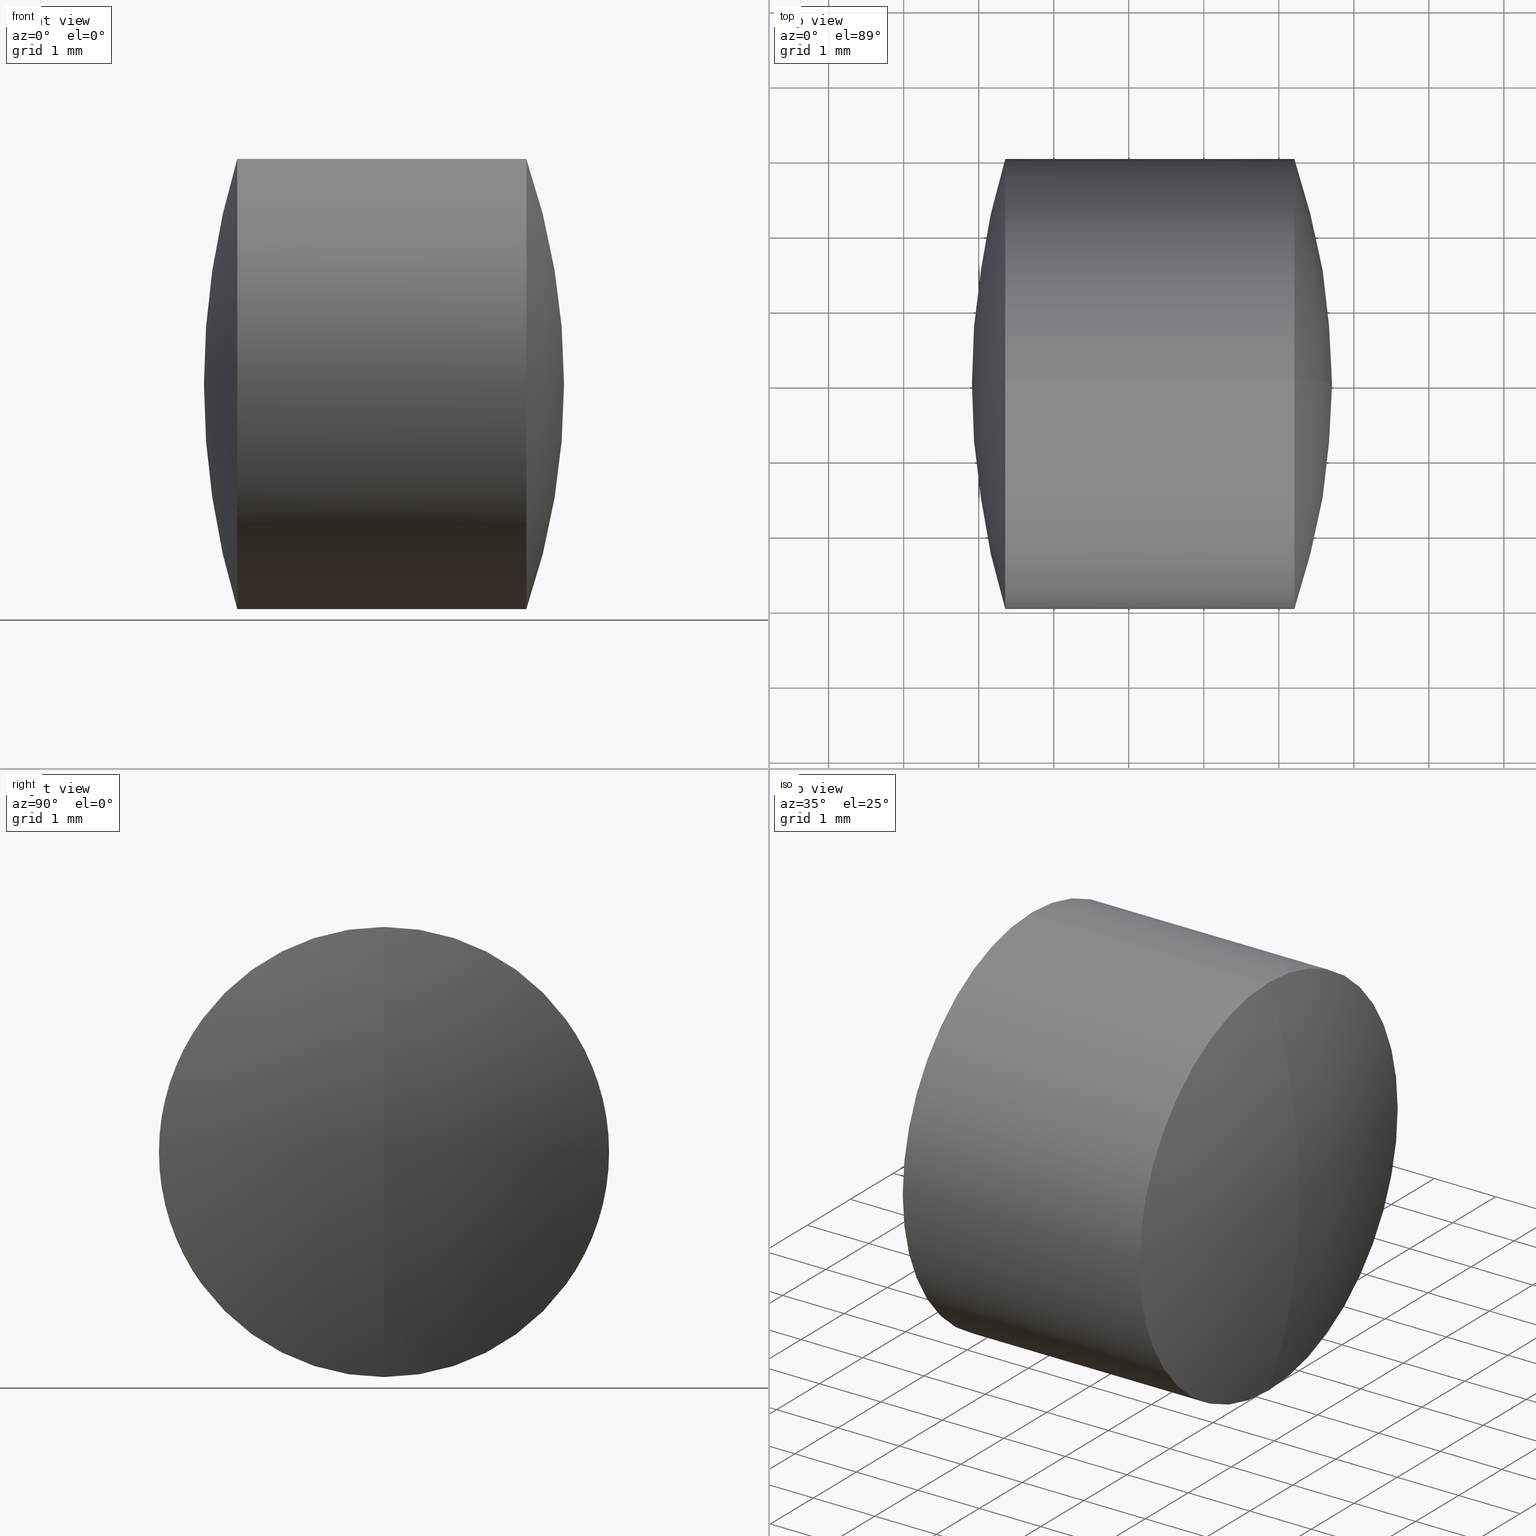
[diagram: canonical four-view strip — front | top / right | iso, engineering-drawing reading convention]
A machine part, canonical four-view strip (front | top / right | iso — engineering-drawing reading convention). The complete STEP part file that produces these views, byte-faithful:
ISO-10303-21;
HEADER;
FILE_DESCRIPTION (( 'STEP AP214' ),
    '1' );
FILE_NAME ('145147.STEP',
    '2019-06-06T02:48:01',
    ( 'user' ),
    ( '΢���й�' ),
    'SwSTEP 2.0',
    'SolidWorks 2016',
    '' );
FILE_SCHEMA (( 'AUTOMOTIVE_DESIGN' ));
ENDSEC;

DATA;
#1 = AXIS2_PLACEMENT_3D ( 'NONE', #107, #47, #204 ) ;
#2 = EDGE_LOOP ( 'NONE', ( #329, #177, #240 ) ) ;
#3 = DIRECTION ( 'NONE',  ( -0.0000000000000000000, -1.000000000000000000, -0.0000000000000000000 ) ) ;
#4 = AXIS2_PLACEMENT_3D ( 'NONE', #187, #258, #317 ) ;
#5 = ADVANCED_FACE ( 'NONE', ( #171 ), #339, .T. ) ;
#6 = DIRECTION ( 'NONE',  ( 0.0000000000000000000, 0.0000000000000000000, -1.000000000000000000 ) ) ;
#7 = EDGE_CURVE ( 'NONE', #222, #221, #336, .T. ) ;
#8 = AXIS2_PLACEMENT_3D ( 'NONE', #43, #70, #74 ) ;
#9 = VERTEX_POINT ( 'NONE', #88 ) ;
#10 = CARTESIAN_POINT ( 'NONE',  ( 1.831048013437507300, 0.0000000000000000000, 3.000000000000000000 ) ) ;
#11 = CARTESIAN_POINT ( 'NONE',  ( -0.2304077828385122900, 0.0000000000000000000, 1.490967787665402800E-016 ) ) ;
#12 = CIRCLE ( 'NONE', #4, 3.000000000000000000 ) ;
#13 = STYLED_ITEM ( 'NONE', ( #274 ), #146 ) ;
#14 = ORIENTED_EDGE ( 'NONE', *, *, #75, .F. ) ;
#15 = CARTESIAN_POINT ( 'NONE',  ( 3.409592217161487000, 0.0000000000000000000, 3.719824962113585100E-016 ) ) ;
#16 = MANIFOLD_SOLID_BREP ( '��ת2', #235 ) ;
#17 = DIRECTION ( 'NONE',  ( -1.000000000000000000, -0.0000000000000000000, -0.0000000000000000000 ) ) ;
#18 = FILL_AREA_STYLE_COLOUR ( '', #155 ) ;
#19 =( GEOMETRIC_REPRESENTATION_CONTEXT ( 3 ) GLOBAL_UNCERTAINTY_ASSIGNED_CONTEXT ( ( #150 ) ) GLOBAL_UNIT_ASSIGNED_CONTEXT ( ( #333, #151, #303 ) ) REPRESENTATION_CONTEXT ( 'NONE', 'WORKASPACE' ) );
#20 = CARTESIAN_POINT ( 'NONE',  ( -0.2304077828385122900, 0.0000000000000000000, 1.490967787665402800E-016 ) ) ;
#21 = SURFACE_SIDE_STYLE ('',( #153 ) ) ;
#22 = EDGE_LOOP ( 'NONE', ( #196, #72, #284 ) ) ;
#23 = CARTESIAN_POINT ( 'NONE',  ( 1.831048013437507300, 0.0000000000000000000, 0.0000000000000000000 ) ) ;
#24 = CIRCLE ( 'NONE', #32, 3.000000000000000000 ) ;
#25 =( GEOMETRIC_REPRESENTATION_CONTEXT ( 3 ) GLOBAL_UNCERTAINTY_ASSIGNED_CONTEXT ( ( #174 ) ) GLOBAL_UNIT_ASSIGNED_CONTEXT ( ( #38, #331, #242 ) ) REPRESENTATION_CONTEXT ( 'NONE', 'WORKASPACE' ) );
#26 =( LENGTH_UNIT ( ) NAMED_UNIT ( * ) SI_UNIT ( .MILLI., .METRE. ) );
#27 = EDGE_LOOP ( 'NONE', ( #159, #36, #113 ) ) ;
#28 = FILL_AREA_STYLE ('',( #18 ) ) ;
#29 = DIRECTION ( 'NONE',  ( -0.0000000000000000000, -1.000000000000000000, -0.0000000000000000000 ) ) ;
#30 = AXIS2_PLACEMENT_3D ( 'NONE', #228, #69, #310 ) ;
#31 = EDGE_LOOP ( 'NONE', ( #68, #306, #52, #14 ) ) ;
#32 = AXIS2_PLACEMENT_3D ( 'NONE', #23, #50, #120 ) ;
#33 = ADVANCED_FACE ( 'NONE', ( #62 ), #194, .F. ) ;
#34 = EDGE_CURVE ( 'NONE', #221, #222, #84, .T. ) ;
#35 = CARTESIAN_POINT ( 'NONE',  ( -0.5519199926577972300, 0.0000000000000000000, 0.0000000000000000000 ) ) ;
#36 = ORIENTED_EDGE ( 'NONE', *, *, #200, .T. ) ;
#37 = ORIENTED_EDGE ( 'NONE', *, *, #116, .F. ) ;
#38 =( LENGTH_UNIT ( ) NAMED_UNIT ( * ) SI_UNIT ( .MILLI., .METRE. ) );
#39 = AXIS2_PLACEMENT_3D ( 'NONE', #239, #260, #316 ) ;
#40 = FACE_OUTER_BOUND ( 'NONE', #241, .T. ) ;
#41 = DIRECTION ( 'NONE',  ( -1.000000000000000000, -0.0000000000000000000, -0.0000000000000000000 ) ) ;
#42 = EDGE_CURVE ( 'NONE', #105, #222, #81, .T. ) ;
#43 = CARTESIAN_POINT ( 'NONE',  ( -0.2304077828385122900, 0.0000000000000000000, 1.490967787665402800E-016 ) ) ;
#44 = DIRECTION ( 'NONE',  ( 0.0000000000000000000, 0.0000000000000000000, 1.000000000000000000 ) ) ;
#45 = VERTEX_POINT ( 'NONE', #281 ) ;
#46 = AXIS2_PLACEMENT_3D ( 'NONE', #101, #41, #180 ) ;
#47 = DIRECTION ( 'NONE',  ( 0.0000000000000000000, -1.000000000000000000, -1.224646799147353200E-016 ) ) ;
#48 = CARTESIAN_POINT ( 'NONE',  ( -4.490407782838510700, 0.0000000000000000000, 0.0000000000000000000 ) ) ;
#49 = AXIS2_PLACEMENT_3D ( 'NONE', #328, #292, #205 ) ;
#50 = DIRECTION ( 'NONE',  ( -1.000000000000000000, -0.0000000000000000000, -0.0000000000000000000 ) ) ;
#51 = AXIS2_PLACEMENT_3D ( 'NONE', #290, #341, #293 ) ;
#52 = ORIENTED_EDGE ( 'NONE', *, *, #212, .F. ) ;
#53 = EDGE_CURVE ( 'NONE', #314, #9, #106, .T. ) ;
#54 = CARTESIAN_POINT ( 'NONE',  ( -0.2304077828385122900, 0.0000000000000000000, 1.490967787665402800E-016 ) ) ;
#55 = CARTESIAN_POINT ( 'NONE',  ( 1.831048013437507300, 0.0000000000000000000, 0.0000000000000000000 ) ) ;
#56 =( NAMED_UNIT ( * ) SI_UNIT ( $, .STERADIAN. ) SOLID_ANGLE_UNIT ( ) );
#57 = VERTEX_POINT ( 'NONE', #170 ) ;
#58 = AXIS2_PLACEMENT_3D ( 'NONE', #11, #198, #172 ) ;
#59 = FILL_AREA_STYLE_COLOUR ( '', #140 ) ;
#60 = FACE_OUTER_BOUND ( 'NONE', #334, .T. ) ;
#61 = EDGE_LOOP ( 'NONE', ( #267, #169, #237 ) ) ;
#62 = FACE_OUTER_BOUND ( 'NONE', #2, .T. ) ;
#63 = PRODUCT_DEFINITION_CONTEXT ( 'detailed design', #165, 'design' ) ;
#64 = DIRECTION ( 'NONE',  ( 0.0000000000000000000, 0.0000000000000000000, 1.000000000000000000 ) ) ;
#65 = AXIS2_PLACEMENT_3D ( 'NONE', #259, #325, #234 ) ;
#66 = ADVANCED_FACE ( 'NONE', ( #99 ), #132, .T. ) ;
#67 =( GEOMETRIC_REPRESENTATION_CONTEXT ( 3 ) GLOBAL_UNCERTAINTY_ASSIGNED_CONTEXT ( ( #311 ) ) GLOBAL_UNIT_ASSIGNED_CONTEXT ( ( #134, #157, #104 ) ) REPRESENTATION_CONTEXT ( 'NONE', 'WORKASPACE' ) );
#68 = ORIENTED_EDGE ( 'NONE', *, *, #149, .T. ) ;
#69 = DIRECTION ( 'NONE',  ( -0.0000000000000000000, -1.000000000000000000, -0.0000000000000000000 ) ) ;
#70 = DIRECTION ( 'NONE',  ( 0.0000000000000000000, -1.000000000000000000, 0.0000000000000000000 ) ) ;
#71 = AXIS2_PLACEMENT_3D ( 'NONE', #175, #254, #330 ) ;
#72 = ORIENTED_EDGE ( 'NONE', *, *, #223, .T. ) ;
#73 = FILL_AREA_STYLE ('',( #179 ) ) ;
#74 = DIRECTION ( 'NONE',  ( 0.0000000000000000000, 0.0000000000000000000, -1.000000000000000000 ) ) ;
#75 = EDGE_CURVE ( 'NONE', #213, #314, #87, .T. ) ;
#76 = CARTESIAN_POINT ( 'NONE',  ( -4.490407782838510700, 0.0000000000000000000, 0.0000000000000000000 ) ) ;
#77 = DIRECTION ( 'NONE',  ( 0.0000000000000000000, 0.0000000000000000000, 1.000000000000000000 ) ) ;
#78 = APPLICATION_PROTOCOL_DEFINITION ( 'draft international standard', 'automotive_design', 1998, #210 ) ;
#79 = PRESENTATION_STYLE_ASSIGNMENT (( #315 ) ) ;
#80 = ORIENTED_EDGE ( 'NONE', *, *, #270, .F. ) ;
#81 = LINE ( 'NONE', #124, #95 ) ;
#82 = AXIS2_PLACEMENT_3D ( 'NONE', #48, #185, #143 ) ;
#83 = ORIENTED_EDGE ( 'NONE', *, *, #75, .T. ) ;
#84 = CIRCLE ( 'NONE', #346, 3.000000000000000000 ) ;
#85 = AXIS2_PLACEMENT_3D ( 'NONE', #294, #135, #118 ) ;
#86 = CIRCLE ( 'NONE', #324, 3.000000000000000000 ) ;
#87 = LINE ( 'NONE', #322, #137 ) ;
#88 = CARTESIAN_POINT ( 'NONE',  ( -0.09040778283851344500, 0.0000000000000000000, -6.167229071329056100E-016 ) ) ;
#89 = CARTESIAN_POINT ( 'NONE',  ( -0.8160621761658039000, 3.673940397442059900E-016, -3.000000000000000000 ) ) ;
#90 = EDGE_CURVE ( 'NONE', #93, #45, #138, .T. ) ;
#91 = DIRECTION ( 'NONE',  ( -1.000000000000000000, -0.0000000000000000000, -0.0000000000000000000 ) ) ;
#92 = ADVANCED_FACE ( 'NONE', ( #163 ), #167, .T. ) ;
#93 = VERTEX_POINT ( 'NONE', #313 ) ;
#94 = SURFACE_SIDE_STYLE ('',( #327 ) ) ;
#95 = VECTOR ( 'NONE', #278, 1000.000000000000000 ) ;
#96 = CIRCLE ( 'NONE', #51, 10.35000000000000100 ) ;
#97 = DIRECTION ( 'NONE',  ( 0.0000000000000000000, 0.0000000000000000000, -1.000000000000000000 ) ) ;
#98 = PRODUCT ( '145147', '145147', '', ( #208 ) ) ;
#99 = FACE_OUTER_BOUND ( 'NONE', #61, .T. ) ;
#100 = DIRECTION ( 'NONE',  ( -1.000000000000000000, -0.0000000000000000000, -0.0000000000000000000 ) ) ;
#101 = CARTESIAN_POINT ( 'NONE',  ( -0.8160621761658039000, 0.0000000000000000000, 0.0000000000000000000 ) ) ;
#102 = CARTESIAN_POINT ( 'NONE',  ( 0.3539120285020531100, -3.673940397442060400E-016, 3.000000000000000000 ) ) ;
#103 = CARTESIAN_POINT ( 'NONE',  ( -4.490407782838510700, 0.0000000000000000000, 0.0000000000000000000 ) ) ;
#104 =( NAMED_UNIT ( * ) SI_UNIT ( $, .STERADIAN. ) SOLID_ANGLE_UNIT ( ) );
#105 = VERTEX_POINT ( 'NONE', #225 ) ;
#106 = CIRCLE ( 'NONE', #39, 10.35000000000000100 ) ;
#107 = CARTESIAN_POINT ( 'NONE',  ( -0.2304077828385122900, 0.0000000000000000000, 1.490967787665402800E-016 ) ) ;
#108 = PRODUCT_RELATED_PRODUCT_CATEGORY ( 'part', '', ( #98 ) ) ;
#109 = DIRECTION ( 'NONE',  ( -1.000000000000000000, -0.0000000000000000000, -0.0000000000000000000 ) ) ;
#110 = DIRECTION ( 'NONE',  ( 1.000000000000000000, 0.0000000000000000000, 0.0000000000000000000 ) ) ;
#111 = EDGE_CURVE ( 'NONE', #119, #213, #296, .T. ) ;
#112 =( NAMED_UNIT ( * ) PLANE_ANGLE_UNIT ( ) SI_UNIT ( $, .RADIAN. ) );
#113 = ORIENTED_EDGE ( 'NONE', *, *, #321, .F. ) ;
#114 = PRODUCT_DEFINITION_FORMATION_WITH_SPECIFIED_SOURCE ( '�κ�', '', #98, .NOT_KNOWN. ) ;
#115 = DIRECTION ( 'NONE',  ( -1.000000000000000000, -0.0000000000000000000, -0.0000000000000000000 ) ) ;
#116 = EDGE_CURVE ( 'NONE', #326, #216, #117, .T. ) ;
#117 = LINE ( 'NONE', #89, #147 ) ;
#118 = DIRECTION ( 'NONE',  ( 0.0000000000000000000, 0.0000000000000000000, -1.000000000000000000 ) ) ;
#119 = VERTEX_POINT ( 'NONE', #15 ) ;
#120 = DIRECTION ( 'NONE',  ( 0.0000000000000000000, 0.0000000000000000000, 1.000000000000000000 ) ) ;
#121 = PRODUCT_DEFINITION ( 'δ֪', '', #114, #63 ) ;
#122 = EDGE_LOOP ( 'NONE', ( #291, #252, #227 ) ) ;
#123 = ADVANCED_FACE ( 'NONE', ( #300 ), #299, .T. ) ;
#124 = CARTESIAN_POINT ( 'NONE',  ( -0.5519199926577972300, 0.0000000000000000000, 3.000000000000000000 ) ) ;
#125 = AXIS2_PLACEMENT_3D ( 'NONE', #262, #139, #110 ) ;
#126 = CLOSED_SHELL ( 'NONE', ( #276, #123, #332, #219, #305, #301 ) ) ;
#127 = DIRECTION ( 'NONE',  ( -1.000000000000000000, -0.0000000000000000000, -0.0000000000000000000 ) ) ;
#128 = DIRECTION ( 'NONE',  ( 0.0000000000000000000, 0.0000000000000000000, -1.000000000000000000 ) ) ;
#129 = ORIENTED_EDGE ( 'NONE', *, *, #133, .T. ) ;
#130 = PRODUCT_DEFINITION_SHAPE ( 'NONE', 'NONE',  #121 ) ;
#131 = CARTESIAN_POINT ( 'NONE',  ( 10.25959221716148800, 0.0000000000000000000, 1.703181142584977900E-017 ) ) ;
#132 = SPHERICAL_SURFACE ( 'NONE', #268, 9.199999999999999300 ) ;
#133 = EDGE_CURVE ( 'NONE', #105, #45, #269, .T. ) ;
#134 =( LENGTH_UNIT ( ) NAMED_UNIT ( * ) SI_UNIT ( .MILLI., .METRE. ) );
#135 = DIRECTION ( 'NONE',  ( -0.0000000000000000000, -1.000000000000000000, -0.0000000000000000000 ) ) ;
#136 = CARTESIAN_POINT ( 'NONE',  ( 1.831048013437506900, -3.673940397442060400E-016, 3.000000000000000000 ) ) ;
#137 = VECTOR ( 'NONE', #127, 1000.000000000000000 ) ;
#138 = CIRCLE ( 'NONE', #344, 9.199999999999999300 ) ;
#139 = DIRECTION ( 'NONE',  ( 0.0000000000000000000, 0.0000000000000000000, 1.000000000000000000 ) ) ;
#140 = COLOUR_RGB ( '',1.000000000000000000, 1.000000000000000000, 1.000000000000000000 ) ;
#141 = CARTESIAN_POINT ( 'NONE',  ( 0.3539120285020534400, 0.0000000000000000000, 0.0000000000000000000 ) ) ;
#142 = DIRECTION ( 'NONE',  ( 0.0000000000000000000, 0.0000000000000000000, 1.000000000000000000 ) ) ;
#143 = DIRECTION ( 'NONE',  ( 0.0000000000000000000, 1.224646799147353200E-016, -1.000000000000000000 ) ) ;
#144 = PRESENTATION_LAYER_ASSIGNMENT (  '', '', ( #318 ) ) ;
#145 = EDGE_LOOP ( 'NONE', ( #37, #193, #83, #295 ) ) ;
#146 = MANIFOLD_SOLID_BREP ( '��ת1', #126 ) ;
#147 = VECTOR ( 'NONE', #100, 1000.000000000000000 ) ;
#148 = ADVANCED_FACE ( 'NONE', ( #160 ), #152, .F. ) ;
#149 = EDGE_CURVE ( 'NONE', #213, #326, #24, .T. ) ;
#150 = UNCERTAINTY_MEASURE_WITH_UNIT (LENGTH_MEASURE( 1.000000000000000100E-005 ), #333, 'distance_accuracy_value', 'NONE');
#151 =( NAMED_UNIT ( * ) PLANE_ANGLE_UNIT ( ) SI_UNIT ( $, .RADIAN. ) );
#152 = SPHERICAL_SURFACE ( 'NONE', #58, 3.640000000000000100 ) ;
#153 = SURFACE_STYLE_FILL_AREA ( #73 ) ;
#154 = ORIENTED_EDGE ( 'NONE', *, *, #212, .T. ) ;
#155 = COLOUR_RGB ( '',1.000000000000000000, 1.000000000000000000, 1.000000000000000000 ) ;
#156 = DIRECTION ( 'NONE',  ( -1.000000000000000000, -0.0000000000000000000, -0.0000000000000000000 ) ) ;
#157 =( NAMED_UNIT ( * ) PLANE_ANGLE_UNIT ( ) SI_UNIT ( $, .RADIAN. ) );
#158 = FACE_OUTER_BOUND ( 'NONE', #22, .T. ) ;
#159 = ORIENTED_EDGE ( 'NONE', *, *, #90, .F. ) ;
#160 = FACE_OUTER_BOUND ( 'NONE', #271, .T. ) ;
#161 = AXIS2_PLACEMENT_3D ( 'NONE', #54, #340, #289 ) ;
#162 = DIRECTION ( 'NONE',  ( 0.0000000000000000000, 0.0000000000000000000, 1.000000000000000000 ) ) ;
#163 = FACE_OUTER_BOUND ( 'NONE', #27, .T. ) ;
#164 = AXIS2_PLACEMENT_3D ( 'NONE', #203, #156, #181 ) ;
#165 = APPLICATION_CONTEXT ( 'automotive_design' ) ;
#166 = ORIENTED_EDGE ( 'NONE', *, *, #321, .T. ) ;
#167 = SPHERICAL_SURFACE ( 'NONE', #30, 9.199999999999999300 ) ;
#168 = SURFACE_SIDE_STYLE ('',( #186 ) ) ;
#169 = ORIENTED_EDGE ( 'NONE', *, *, #90, .T. ) ;
#170 = CARTESIAN_POINT ( 'NONE',  ( 3.409592217161487900, 0.0000000000000000000, -7.378893867827801700E-017 ) ) ;
#171 = FACE_OUTER_BOUND ( 'NONE', #182, .T. ) ;
#172 = DIRECTION ( 'NONE',  ( 0.0000000000000000000, 0.0000000000000000000, -1.000000000000000000 ) ) ;
#173 = SPHERICAL_SURFACE ( 'NONE', #85, 10.35000000000000100 ) ;
#174 = UNCERTAINTY_MEASURE_WITH_UNIT (LENGTH_MEASURE( 1.000000000000000100E-005 ), #38, 'distance_accuracy_value', 'NONE');
#175 = CARTESIAN_POINT ( 'NONE',  ( 4.206718179225045900, 0.0000000000000000000, 0.0000000000000000000 ) ) ;
#176 = SPHERICAL_SURFACE ( 'NONE', #312, 10.35000000000000100 ) ;
#177 = ORIENTED_EDGE ( 'NONE', *, *, #270, .T. ) ;
#178 = MECHANICAL_DESIGN_GEOMETRIC_PRESENTATION_REPRESENTATION (  '', ( #13 ), #25 ) ;
#179 = FILL_AREA_STYLE_COLOUR ( '', #286 ) ;
#180 = DIRECTION ( 'NONE',  ( 0.0000000000000000000, 0.0000000000000000000, 1.000000000000000000 ) ) ;
#181 = DIRECTION ( 'NONE',  ( 0.0000000000000000000, 0.0000000000000000000, 1.000000000000000000 ) ) ;
#182 = EDGE_LOOP ( 'NONE', ( #233, #166, #206, #320 ) ) ;
#183 = AXIS2_PLACEMENT_3D ( 'NONE', #218, #91, #64 ) ;
#184 = DIRECTION ( 'NONE',  ( 0.0000000000000000000, 1.000000000000000000, 0.0000000000000000000 ) ) ;
#185 = DIRECTION ( 'NONE',  ( 0.0000000000000000000, -1.000000000000000000, -1.224646799147353200E-016 ) ) ;
#186 = SURFACE_STYLE_FILL_AREA ( #217 ) ;
#187 = CARTESIAN_POINT ( 'NONE',  ( 0.3539120285020534400, 0.0000000000000000000, 0.0000000000000000000 ) ) ;
#188 = CARTESIAN_POINT ( 'NONE',  ( 0.3539120285020531100, 0.0000000000000000000, -3.000000000000000000 ) ) ;
#189 = ORIENTED_EDGE ( 'NONE', *, *, #251, .T. ) ;
#190 = EDGE_CURVE ( 'NONE', #216, #9, #96, .T. ) ;
#191 = AXIS2_PLACEMENT_3D ( 'NONE', #201, #17, #44 ) ;
#192 = FACE_OUTER_BOUND ( 'NONE', #122, .T. ) ;
#193 = ORIENTED_EDGE ( 'NONE', *, *, #209, .T. ) ;
#194 = SPHERICAL_SURFACE ( 'NONE', #275, 3.640000000000000100 ) ;
#195 = EDGE_CURVE ( 'NONE', #216, #314, #308, .T. ) ;
#196 = ORIENTED_EDGE ( 'NONE', *, *, #111, .F. ) ;
#197 = ORIENTED_EDGE ( 'NONE', *, *, #53, .T. ) ;
#198 = DIRECTION ( 'NONE',  ( -0.0000000000000000000, -1.000000000000000000, -0.0000000000000000000 ) ) ;
#199 = DIRECTION ( 'NONE',  ( 0.0000000000000000000, 0.0000000000000000000, 1.000000000000000000 ) ) ;
#200 = EDGE_CURVE ( 'NONE', #93, #105, #236, .T. ) ;
#201 = CARTESIAN_POINT ( 'NONE',  ( 4.206718179225045900, 0.0000000000000000000, 0.0000000000000000000 ) ) ;
#202 = ORIENTED_EDGE ( 'NONE', *, *, #195, .T. ) ;
#203 = CARTESIAN_POINT ( 'NONE',  ( -0.8160621761658039000, 0.0000000000000000000, 0.0000000000000000000 ) ) ;
#204 = DIRECTION ( 'NONE',  ( 0.0000000000000000000, 1.224646799147353200E-016, -1.000000000000000000 ) ) ;
#205 = DIRECTION ( 'NONE',  ( 0.0000000000000000000, -1.224646799147353000E-016, 1.000000000000000000 ) ) ;
#206 = ORIENTED_EDGE ( 'NONE', *, *, #42, .T. ) ;
#207 = EDGE_LOOP ( 'NONE', ( #129, #189, #280, #245 ) ) ;
#208 = PRODUCT_CONTEXT ( 'NONE', #210, 'mechanical' ) ;
#209 = EDGE_CURVE ( 'NONE', #326, #213, #86, .T. ) ;
#210 = APPLICATION_CONTEXT ( 'automotive_design' ) ;
#211 = ORIENTED_EDGE ( 'NONE', *, *, #190, .T. ) ;
#212 = EDGE_CURVE ( 'NONE', #314, #216, #12, .T. ) ;
#213 = VERTEX_POINT ( 'NONE', #10 ) ;
#214 = FACE_OUTER_BOUND ( 'NONE', #207, .T. ) ;
#215 = CIRCLE ( 'NONE', #191, 3.000000000000000000 ) ;
#216 = VERTEX_POINT ( 'NONE', #188 ) ;
#217 = FILL_AREA_STYLE ('',( #59 ) ) ;
#218 = CARTESIAN_POINT ( 'NONE',  ( 1.831048013437506900, 0.0000000000000000000, 0.0000000000000000000 ) ) ;
#219 = ADVANCED_FACE ( 'NONE', ( #60 ), #173, .T. ) ;
#220 = SURFACE_STYLE_USAGE ( .BOTH. , #94 ) ;
#221 = VERTEX_POINT ( 'NONE', #288 ) ;
#222 = VERTEX_POINT ( 'NONE', #136 ) ;
#223 = EDGE_CURVE ( 'NONE', #119, #326, #297, .T. ) ;
#224 = CIRCLE ( 'NONE', #161, 3.640000000000000100 ) ;
#225 = CARTESIAN_POINT ( 'NONE',  ( 4.206718179225045900, -3.673940397442063300E-016, 3.000000000000003600 ) ) ;
#226 = ORIENTED_EDGE ( 'NONE', *, *, #190, .F. ) ;
#227 = ORIENTED_EDGE ( 'NONE', *, *, #209, .F. ) ;
#228 = CARTESIAN_POINT ( 'NONE',  ( -4.490407782838510700, 0.0000000000000000000, 0.0000000000000000000 ) ) ;
#229 = DIRECTION ( 'NONE',  ( 0.0000000000000000000, 0.0000000000000000000, 1.000000000000000000 ) ) ;
#230 = UNCERTAINTY_MEASURE_WITH_UNIT (LENGTH_MEASURE( 1.000000000000000100E-005 ), #26, 'distance_accuracy_value', 'NONE');
#231 = CARTESIAN_POINT ( 'NONE',  ( -0.5519199926577972300, 3.673940397442059900E-016, -3.000000000000000000 ) ) ;
#232 = CYLINDRICAL_SURFACE ( 'NONE', #253, 3.000000000000000000 ) ;
#233 = ORIENTED_EDGE ( 'NONE', *, *, #251, .F. ) ;
#234 = DIRECTION ( 'NONE',  ( 0.0000000000000000000, 0.0000000000000000000, 1.000000000000000000 ) ) ;
#235 = CLOSED_SHELL ( 'NONE', ( #250, #92, #33, #148, #66, #5 ) ) ;
#236 = CIRCLE ( 'NONE', #82, 9.199999999999999300 ) ;
#237 = ORIENTED_EDGE ( 'NONE', *, *, #133, .F. ) ;
#238 = CARTESIAN_POINT ( 'NONE',  ( -0.5519199926577972300, 0.0000000000000000000, 0.0000000000000000000 ) ) ;
#239 = CARTESIAN_POINT ( 'NONE',  ( 10.25959221716148800, 0.0000000000000000000, 1.703181142584977900E-017 ) ) ;
#240 = ORIENTED_EDGE ( 'NONE', *, *, #7, .T. ) ;
#241 = EDGE_LOOP ( 'NONE', ( #202, #197, #226 ) ) ;
#242 =( NAMED_UNIT ( * ) SI_UNIT ( $, .STERADIAN. ) SOLID_ANGLE_UNIT ( ) );
#243 = MECHANICAL_DESIGN_GEOMETRIC_PRESENTATION_REPRESENTATION (  '', ( #318 ), #67 ) ;
#244 = SHAPE_DEFINITION_REPRESENTATION ( #130, #265 ) ;
#245 = ORIENTED_EDGE ( 'NONE', *, *, #42, .F. ) ;
#246 = CARTESIAN_POINT ( 'NONE',  ( -0.2304077828385122900, 0.0000000000000000000, 1.490967787665402800E-016 ) ) ;
#247 = DIRECTION ( 'NONE',  ( 0.0000000000000000000, 1.000000000000000000, -0.0000000000000000000 ) ) ;
#248 = AXIS2_PLACEMENT_3D ( 'NONE', #141, #323, #343 ) ;
#249 = FACE_OUTER_BOUND ( 'NONE', #145, .T. ) ;
#250 = ADVANCED_FACE ( 'NONE', ( #214 ), #232, .T. ) ;
#251 = EDGE_CURVE ( 'NONE', #45, #221, #298, .T. ) ;
#252 = ORIENTED_EDGE ( 'NONE', *, *, #111, .T. ) ;
#253 = AXIS2_PLACEMENT_3D ( 'NONE', #238, #115, #261 ) ;
#254 = DIRECTION ( 'NONE',  ( -1.000000000000000000, -0.0000000000000000000, -0.0000000000000000000 ) ) ;
#255 = EDGE_CURVE ( 'NONE', #57, #221, #224, .T. ) ;
#256 = DIRECTION ( 'NONE',  ( -0.0000000000000000000, -1.000000000000000000, -0.0000000000000000000 ) ) ;
#257 = ORIENTED_EDGE ( 'NONE', *, *, #34, .T. ) ;
#258 = DIRECTION ( 'NONE',  ( -1.000000000000000000, -0.0000000000000000000, -0.0000000000000000000 ) ) ;
#259 = CARTESIAN_POINT ( 'NONE',  ( -0.2304077828385122900, 0.0000000000000000000, 1.490967787665402800E-016 ) ) ;
#260 = DIRECTION ( 'NONE',  ( 0.0000000000000000000, -1.000000000000000000, -1.224646799147353200E-016 ) ) ;
#261 = DIRECTION ( 'NONE',  ( 0.0000000000000000000, 0.0000000000000000000, 1.000000000000000000 ) ) ;
#262 = CARTESIAN_POINT ( 'NONE',  ( 0.0000000000000000000, 0.0000000000000000000, 0.0000000000000000000 ) ) ;
#263 = STYLED_ITEM ( 'NONE', ( #345 ), #16 ) ;
#264 = DIRECTION ( 'NONE',  ( -1.000000000000000000, -0.0000000000000000000, -0.0000000000000000000 ) ) ;
#265 = ADVANCED_BREP_SHAPE_REPRESENTATION ( '145147', ( #146, #16, #125 ), #337 ) ;
#266 = SPHERICAL_SURFACE ( 'NONE', #335, 3.639999999999999700 ) ;
#267 = ORIENTED_EDGE ( 'NONE', *, *, #200, .F. ) ;
#268 = AXIS2_PLACEMENT_3D ( 'NONE', #76, #29, #97 ) ;
#269 = CIRCLE ( 'NONE', #71, 3.000000000000000000 ) ;
#270 = EDGE_CURVE ( 'NONE', #57, #222, #283, .T. ) ;
#271 = EDGE_LOOP ( 'NONE', ( #80, #279, #257 ) ) ;
#272 = DIRECTION ( 'NONE',  ( -1.000000000000000000, -0.0000000000000000000, -0.0000000000000000000 ) ) ;
#273 = SPHERICAL_SURFACE ( 'NONE', #65, 3.639999999999999700 ) ;
#274 = PRESENTATION_STYLE_ASSIGNMENT (( #220 ) ) ;
#275 = AXIS2_PLACEMENT_3D ( 'NONE', #246, #3, #6 ) ;
#276 = ADVANCED_FACE ( 'NONE', ( #158 ), #273, .T. ) ;
#277 = SURFACE_STYLE_USAGE ( .BOTH. , #168 ) ;
#278 = DIRECTION ( 'NONE',  ( -1.000000000000000000, -0.0000000000000000000, -0.0000000000000000000 ) ) ;
#279 = ORIENTED_EDGE ( 'NONE', *, *, #255, .T. ) ;
#280 = ORIENTED_EDGE ( 'NONE', *, *, #7, .F. ) ;
#281 = CARTESIAN_POINT ( 'NONE',  ( 4.206718179225045900, 0.0000000000000000000, -3.000000000000003600 ) ) ;
#282 = PRESENTATION_LAYER_ASSIGNMENT (  '', '', ( #263 ) ) ;
#283 = CIRCLE ( 'NONE', #1, 3.640000000000000100 ) ;
#284 = ORIENTED_EDGE ( 'NONE', *, *, #149, .F. ) ;
#285 = CARTESIAN_POINT ( 'NONE',  ( 1.831048013437507300, 3.673940397442059900E-016, -3.000000000000000000 ) ) ;
#286 = COLOUR_RGB ( '',1.000000000000000000, 1.000000000000000000, 1.000000000000000000 ) ;
#287 = ORIENTED_EDGE ( 'NONE', *, *, #53, .F. ) ;
#288 = CARTESIAN_POINT ( 'NONE',  ( 1.831048013437506900, 0.0000000000000000000, -3.000000000000000000 ) ) ;
#289 = DIRECTION ( 'NONE',  ( 0.0000000000000000000, 0.0000000000000000000, 1.000000000000000000 ) ) ;
#290 = CARTESIAN_POINT ( 'NONE',  ( 10.25959221716148800, 0.0000000000000000000, 1.703181142584977900E-017 ) ) ;
#291 = ORIENTED_EDGE ( 'NONE', *, *, #223, .F. ) ;
#292 = DIRECTION ( 'NONE',  ( -0.0000000000000000000, 1.000000000000000000, 1.224646799147353200E-016 ) ) ;
#293 = DIRECTION ( 'NONE',  ( 0.0000000000000000000, 0.0000000000000000000, 1.000000000000000000 ) ) ;
#294 = CARTESIAN_POINT ( 'NONE',  ( 10.25959221716148800, 0.0000000000000000000, 1.703181142584977900E-017 ) ) ;
#295 = ORIENTED_EDGE ( 'NONE', *, *, #195, .F. ) ;
#296 = CIRCLE ( 'NONE', #8, 3.639999999999999700 ) ;
#297 = CIRCLE ( 'NONE', #49, 3.639999999999999700 ) ;
#298 = LINE ( 'NONE', #231, #319 ) ;
#299 = CYLINDRICAL_SURFACE ( 'NONE', #46, 3.000000000000000000 ) ;
#300 = FACE_OUTER_BOUND ( 'NONE', #31, .T. ) ;
#301 = ADVANCED_FACE ( 'NONE', ( #192 ), #266, .T. ) ;
#302 = PRESENTATION_LAYER_ASSIGNMENT (  '', '', ( #13 ) ) ;
#303 =( NAMED_UNIT ( * ) SI_UNIT ( $, .STERADIAN. ) SOLID_ANGLE_UNIT ( ) );
#304 = CYLINDRICAL_SURFACE ( 'NONE', #164, 3.000000000000000000 ) ;
#305 = ADVANCED_FACE ( 'NONE', ( #249 ), #304, .T. ) ;
#306 = ORIENTED_EDGE ( 'NONE', *, *, #116, .T. ) ;
#307 = CARTESIAN_POINT ( 'NONE',  ( 1.831048013437506900, 0.0000000000000000000, 0.0000000000000000000 ) ) ;
#308 = CIRCLE ( 'NONE', #248, 3.000000000000000000 ) ;
#309 = MECHANICAL_DESIGN_GEOMETRIC_PRESENTATION_REPRESENTATION (  '', ( #263 ), #19 ) ;
#310 = DIRECTION ( 'NONE',  ( 0.0000000000000000000, 0.0000000000000000000, -1.000000000000000000 ) ) ;
#311 = UNCERTAINTY_MEASURE_WITH_UNIT (LENGTH_MEASURE( 1.000000000000000100E-005 ), #134, 'distance_accuracy_value', 'NONE');
#312 = AXIS2_PLACEMENT_3D ( 'NONE', #131, #256, #128 ) ;
#313 = CARTESIAN_POINT ( 'NONE',  ( 4.709592217161488600, 0.0000000000000000000, -5.633375276077824100E-016 ) ) ;
#314 = VERTEX_POINT ( 'NONE', #102 ) ;
#315 = SURFACE_STYLE_USAGE ( .BOTH. , #21 ) ;
#316 = DIRECTION ( 'NONE',  ( 0.0000000000000000000, 1.224646799147353200E-016, -1.000000000000000000 ) ) ;
#317 = DIRECTION ( 'NONE',  ( 0.0000000000000000000, 0.0000000000000000000, 1.000000000000000000 ) ) ;
#318 = STYLED_ITEM ( 'NONE', ( #79 ), #265 ) ;
#319 = VECTOR ( 'NONE', #342, 1000.000000000000000 ) ;
#320 = ORIENTED_EDGE ( 'NONE', *, *, #34, .F. ) ;
#321 = EDGE_CURVE ( 'NONE', #45, #105, #215, .T. ) ;
#322 = CARTESIAN_POINT ( 'NONE',  ( -0.8160621761658039000, 0.0000000000000000000, 3.000000000000000000 ) ) ;
#323 = DIRECTION ( 'NONE',  ( -1.000000000000000000, -0.0000000000000000000, -0.0000000000000000000 ) ) ;
#324 = AXIS2_PLACEMENT_3D ( 'NONE', #55, #264, #142 ) ;
#325 = DIRECTION ( 'NONE',  ( 0.0000000000000000000, 1.000000000000000000, 0.0000000000000000000 ) ) ;
#326 = VERTEX_POINT ( 'NONE', #285 ) ;
#327 = SURFACE_STYLE_FILL_AREA ( #28 ) ;
#328 = CARTESIAN_POINT ( 'NONE',  ( -0.2304077828385122900, 0.0000000000000000000, 1.490967787665402800E-016 ) ) ;
#329 = ORIENTED_EDGE ( 'NONE', *, *, #255, .F. ) ;
#330 = DIRECTION ( 'NONE',  ( 0.0000000000000000000, 0.0000000000000000000, 1.000000000000000000 ) ) ;
#331 =( NAMED_UNIT ( * ) PLANE_ANGLE_UNIT ( ) SI_UNIT ( $, .RADIAN. ) );
#332 = ADVANCED_FACE ( 'NONE', ( #40 ), #176, .T. ) ;
#333 =( LENGTH_UNIT ( ) NAMED_UNIT ( * ) SI_UNIT ( .MILLI., .METRE. ) );
#334 = EDGE_LOOP ( 'NONE', ( #287, #154, #211 ) ) ;
#335 = AXIS2_PLACEMENT_3D ( 'NONE', #20, #184, #77 ) ;
#336 = CIRCLE ( 'NONE', #183, 3.000000000000000000 ) ;
#337 =( GEOMETRIC_REPRESENTATION_CONTEXT ( 3 ) GLOBAL_UNCERTAINTY_ASSIGNED_CONTEXT ( ( #230 ) ) GLOBAL_UNIT_ASSIGNED_CONTEXT ( ( #26, #112, #56 ) ) REPRESENTATION_CONTEXT ( 'NONE', 'WORKASPACE' ) );
#338 = AXIS2_PLACEMENT_3D ( 'NONE', #35, #272, #199 ) ;
#339 = CYLINDRICAL_SURFACE ( 'NONE', #338, 3.000000000000000000 ) ;
#340 = DIRECTION ( 'NONE',  ( 0.0000000000000000000, 1.000000000000000000, -0.0000000000000000000 ) ) ;
#341 = DIRECTION ( 'NONE',  ( 0.0000000000000000000, 1.000000000000000000, -0.0000000000000000000 ) ) ;
#342 = DIRECTION ( 'NONE',  ( -1.000000000000000000, -0.0000000000000000000, -0.0000000000000000000 ) ) ;
#343 = DIRECTION ( 'NONE',  ( 0.0000000000000000000, 0.0000000000000000000, 1.000000000000000000 ) ) ;
#344 = AXIS2_PLACEMENT_3D ( 'NONE', #103, #247, #229 ) ;
#345 = PRESENTATION_STYLE_ASSIGNMENT (( #277 ) ) ;
#346 = AXIS2_PLACEMENT_3D ( 'NONE', #307, #109, #162 ) ;
#347 = APPLICATION_PROTOCOL_DEFINITION ( 'draft international standard', 'automotive_design', 1998, #165 ) ;
ENDSEC;
END-ISO-10303-21;
